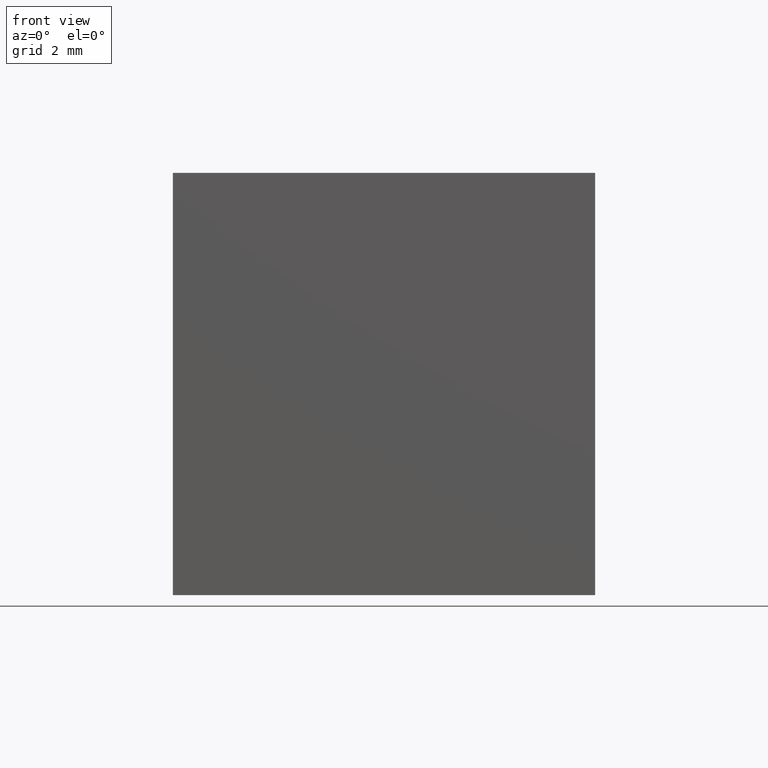
[diagram: clean part render]
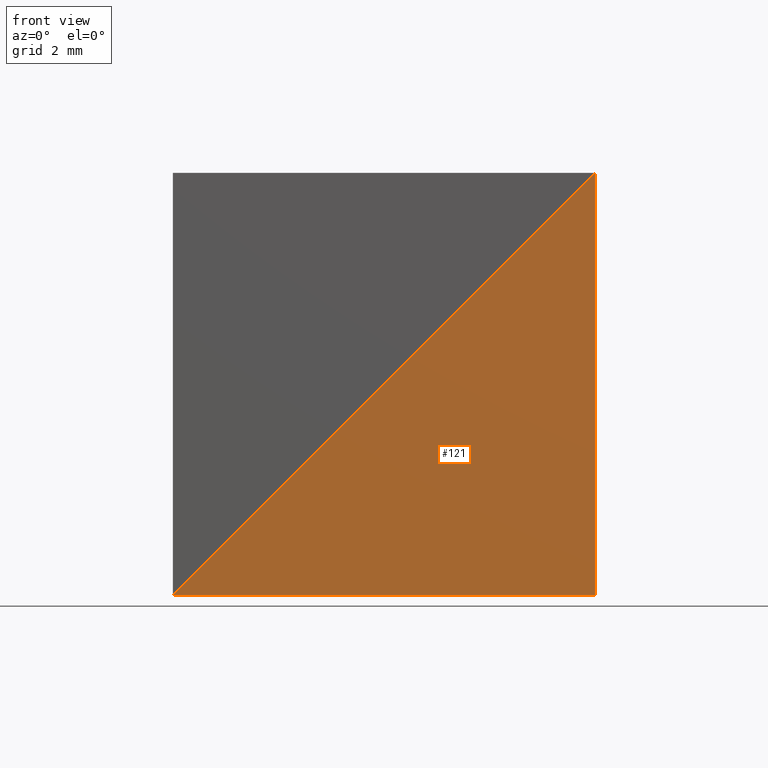
[diagram: same view with one face highlighted and labeled with its STEP entity id]
A machine part, front view. The second image highlights one B-rep face of the part: STEP entity #121.
In plain terms, the highlighted planar face has unit normal (-0, 1, 0).
Its self-contained STEP definition (entity closure, byte-faithful):
#13 = FACE_OUTER_BOUND ( 'NONE', #259, .T. ) ;
#14 = PLANE ( 'NONE',  #105 ) ;
#51 = CARTESIAN_POINT ( 'NONE',  ( -15.00000000000000000, 0.0000000000000000000, -14.99999999999999600 ) ) ;
#58 = DIRECTION ( 'NONE',  ( 0.7071067811865476800, 0.0000000000000000000, 0.7071067811865474600 ) ) ;
#60 = VERTEX_POINT ( 'NONE', #289 ) ;
#70 = VECTOR ( 'NONE', #126, 1000.000000000000000 ) ;
#73 = ORIENTED_EDGE ( 'NONE', *, *, #111, .F. ) ;
#91 = LINE ( 'NONE', #270, #285 ) ;
#101 = EDGE_CURVE ( 'NONE', #232, #163, #147, .T. ) ;
#105 = AXIS2_PLACEMENT_3D ( 'NONE', #249, #150, #287 ) ;
#111 = EDGE_CURVE ( 'NONE', #60, #232, #91, .T. ) ;
#121 = ADVANCED_FACE ( 'NONE', ( #13 ), #14, .F. ) ;
#126 = DIRECTION ( 'NONE',  ( 0.0000000000000000000, 0.0000000000000000000, -1.000000000000000000 ) ) ;
#133 = EDGE_CURVE ( 'NONE', #163, #60, #200, .T. ) ;
#147 = LINE ( 'NONE', #151, #272 ) ;
#150 = DIRECTION ( 'NONE',  ( -0.0000000000000000000, 1.000000000000000000, 0.0000000000000000000 ) ) ;
#151 = CARTESIAN_POINT ( 'NONE',  ( -15.00000000000000000, 0.0000000000000000000, -14.99999999999999600 ) ) ;
#163 = VERTEX_POINT ( 'NONE', #218 ) ;
#166 = ORIENTED_EDGE ( 'NONE', *, *, #133, .F. ) ;
#170 = ORIENTED_EDGE ( 'NONE', *, *, #101, .F. ) ;
#200 = LINE ( 'NONE', #269, #70 ) ;
#218 = CARTESIAN_POINT ( 'NONE',  ( 0.0000000000000000000, 0.0000000000000000000, 0.0000000000000000000 ) ) ;
#220 = DIRECTION ( 'NONE',  ( -1.000000000000000000, 0.0000000000000000000, 2.312964634635743000E-016 ) ) ;
#232 = VERTEX_POINT ( 'NONE', #51 ) ;
#249 = CARTESIAN_POINT ( 'NONE',  ( 0.0000000000000000000, 0.0000000000000000000, 0.0000000000000000000 ) ) ;
#259 = EDGE_LOOP ( 'NONE', ( #170, #73, #166 ) ) ;
#269 = CARTESIAN_POINT ( 'NONE',  ( 0.0000000000000000000, 0.0000000000000000000, 0.0000000000000000000 ) ) ;
#270 = CARTESIAN_POINT ( 'NONE',  ( 0.0000000000000000000, 0.0000000000000000000, -15.00000000000000000 ) ) ;
#272 = VECTOR ( 'NONE', #58, 1000.000000000000000 ) ;
#285 = VECTOR ( 'NONE', #220, 1000.000000000000000 ) ;
#287 = DIRECTION ( 'NONE',  ( 0.0000000000000000000, -0.0000000000000000000, 1.000000000000000000 ) ) ;
#289 = CARTESIAN_POINT ( 'NONE',  ( 0.0000000000000000000, 0.0000000000000000000, -15.00000000000000000 ) ) ;